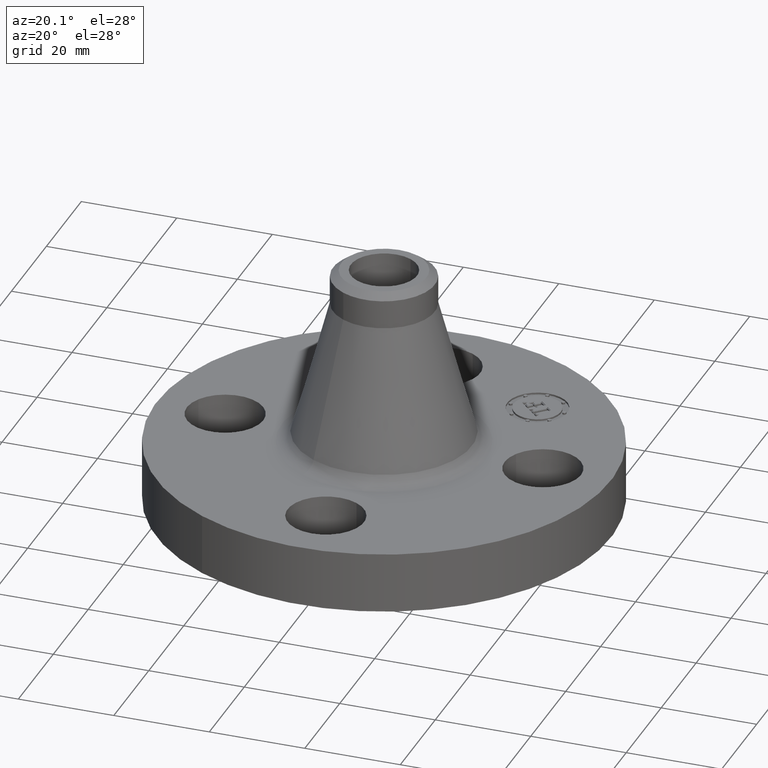
[diagram: clean part render]
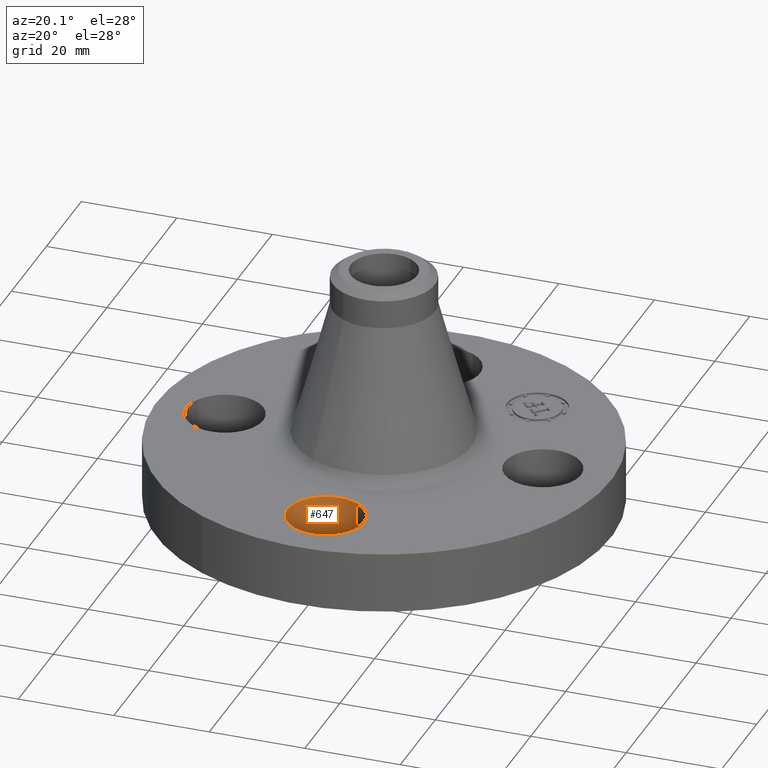
[diagram: same view with one face highlighted and labeled with its STEP entity id]
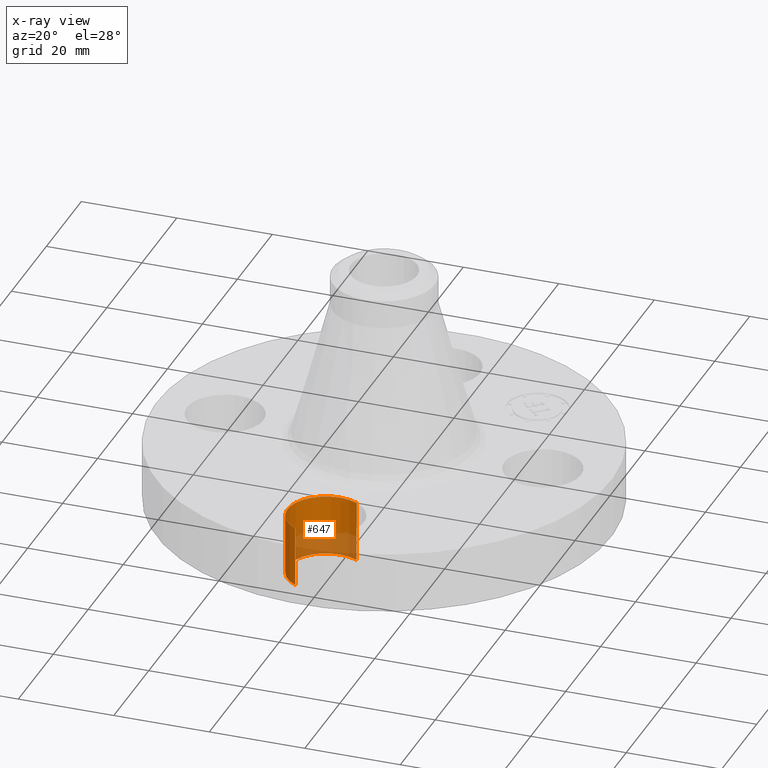
[diagram: x-ray of the same camera — body ghosted, the highlighted face saturated]
A machine part, auxiliary view. The second image highlights one B-rep face of the part: STEP entity #647.
The next image is the same camera in x-ray: the body ghosted, the highlighted face saturated — about 31% of this face is hidden behind the body in this view.
In plain terms, the highlighted cylindrical surface (partial cylindrical patch) has radius 8.001 mm, axis along (0, -0, -1).
Its self-contained STEP definition (entity closure, byte-faithful):
#475=AXIS2_PLACEMENT_3D('Circle Axis2P3D',#473,#474,$) ;
#608=AXIS2_PLACEMENT_3D('Cylinder Axis2P3D',#605,#606,#607) ;
#638=AXIS2_PLACEMENT_3D('Circle Axis2P3D',#636,#637,$) ;
#468=CARTESIAN_POINT('Vertex',(0.151019044661,-1.03356149301,0.)) ;
#470=CARTESIAN_POINT('Vertex',(-0.151019044661,-1.586438507,0.)) ;
#473=CARTESIAN_POINT('Axis2P3D Location',(-1.74838271595E-016,-1.31000000001,0.)) ;
#605=CARTESIAN_POINT('Axis2P3D Location',(-1.99526869207E-016,-1.31000000001,0.496062992128)) ;
#610=CARTESIAN_POINT('Line Origine',(0.151019044661,-1.03356149301,0.250000000001)) ;
#614=CARTESIAN_POINT('Vertex',(0.151019044661,-1.03356149301,0.500000000002)) ;
#617=CARTESIAN_POINT('Line Origine',(-0.151019044661,-1.586438507,0.250000000001)) ;
#621=CARTESIAN_POINT('Vertex',(-0.151019044661,-1.586438507,0.500000000002)) ;
#636=CARTESIAN_POINT('Axis2P3D Location',(-1.99526869207E-016,-1.31000000001,0.500000000002)) ;
#474=DIRECTION('Axis2P3D Direction',(0.,0.,-0.0393700787402)) ;
#606=DIRECTION('Axis2P3D Direction',(0.,-0.,-0.0393700787402)) ;
#607=DIRECTION('Axis2P3D XDirection',(-0.0188750212049,-0.0345504945626,0.)) ;
#611=DIRECTION('Vector Direction',(0.,0.,-0.0393700787402)) ;
#618=DIRECTION('Vector Direction',(0.,0.,-0.0393700787402)) ;
#637=DIRECTION('Axis2P3D Direction',(0.,-0.,-0.0393700787402)) ;
#612=VECTOR('Line Direction',#611,0.0393700787402) ;
#619=VECTOR('Line Direction',#618,0.0393700787402) ;
#642=ORIENTED_EDGE('',*,*,#623,.F.) ;
#643=ORIENTED_EDGE('',*,*,#477,.T.) ;
#644=ORIENTED_EDGE('',*,*,#616,.T.) ;
#645=ORIENTED_EDGE('',*,*,#640,.F.) ;
#647=ADVANCED_FACE('PartBody',(#646),#609,.F.) ;
#476=CIRCLE('generated circle',#475,0.315000000001) ;
#639=CIRCLE('generated circle',#638,0.315000000001) ;
#609=CYLINDRICAL_SURFACE('generated cylinder',#608,0.315000000001) ;
#477=EDGE_CURVE('',#471,#469,#476,.T.) ;
#616=EDGE_CURVE('',#469,#615,#613,.F.) ;
#623=EDGE_CURVE('',#471,#622,#620,.F.) ;
#640=EDGE_CURVE('',#622,#615,#639,.T.) ;
#641=EDGE_LOOP('',(#642,#643,#644,#645)) ;
#646=FACE_OUTER_BOUND('',#641,.T.) ;
#613=LINE('Line',#610,#612) ;
#620=LINE('Line',#617,#619) ;
#469=VERTEX_POINT('',#468) ;
#471=VERTEX_POINT('',#470) ;
#615=VERTEX_POINT('',#614) ;
#622=VERTEX_POINT('',#621) ;